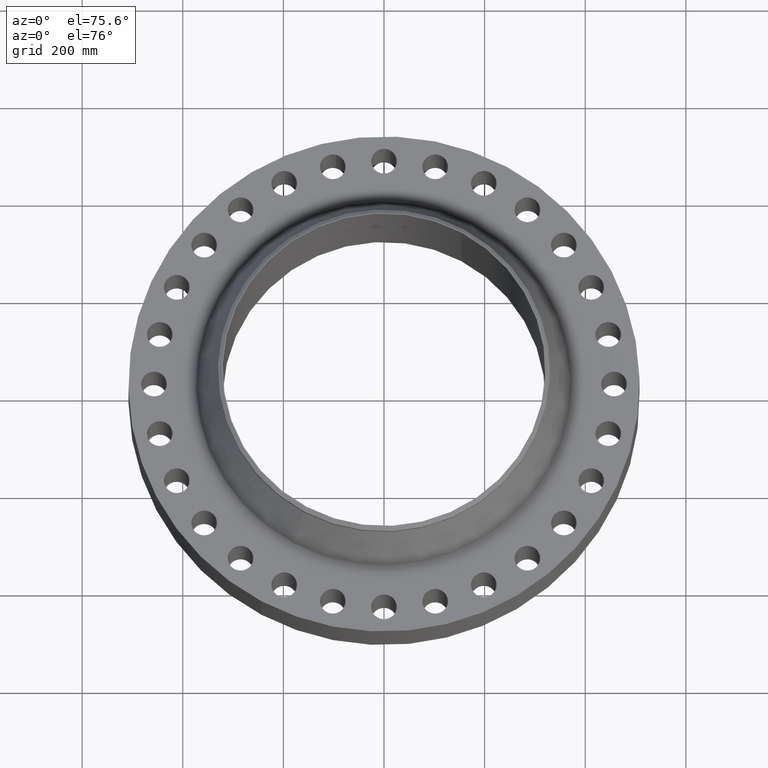
[diagram: clean part render]
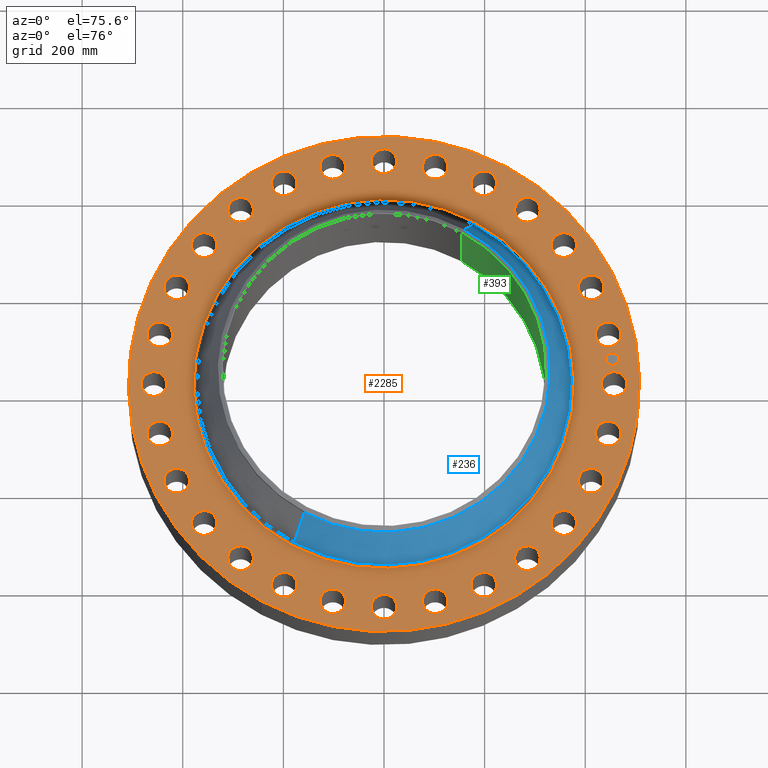
[diagram: same view with three faces highlighted in distinct colors, each labeled with its STEP entity id]
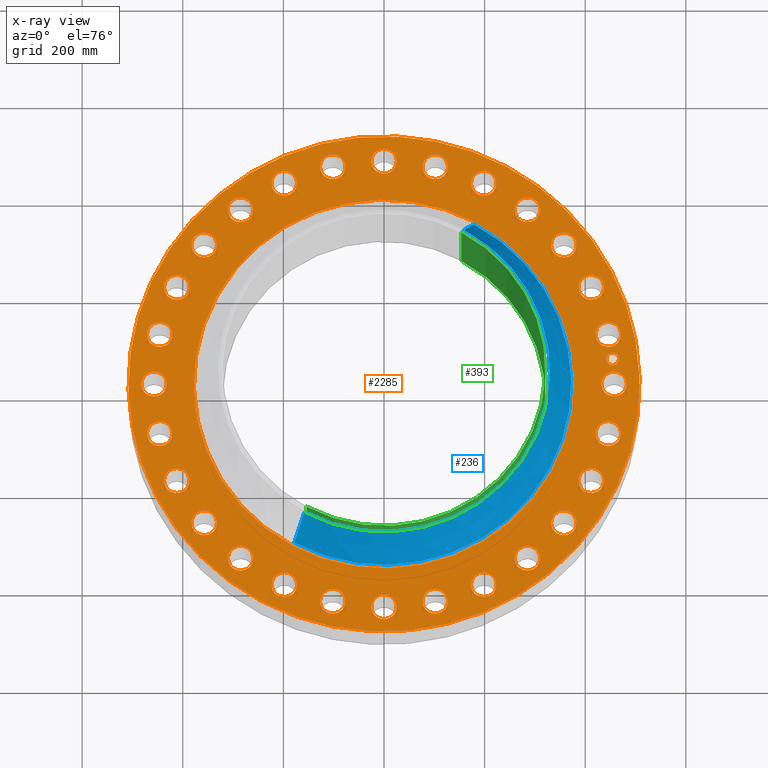
[diagram: x-ray of the same camera — body ghosted, the three highlighted faces saturated]
A machine part, auxiliary view with three faces highlighted in distinct colors.
The next image is the same camera in x-ray (body ghosted, the three faces saturated) — at least one of them is partly hidden behind the body in this view.
Their STEP definitions:

[orange] entity #2285 — the highlighted planar face has unit normal (0, 0, -1).
#65=AXIS2_PLACEMENT_3D('Circle Axis2P3D',#63,#64,$) ;
#82=AXIS2_PLACEMENT_3D('Circle Axis2P3D',#80,#81,$) ;
#115=AXIS2_PLACEMENT_3D('Circle Axis2P3D',#113,#114,$) ;
#139=AXIS2_PLACEMENT_3D('Circle Axis2P3D',#137,#138,$) ;
#156=AXIS2_PLACEMENT_3D('Circle Axis2P3D',#154,#155,$) ;
#191=AXIS2_PLACEMENT_3D('Circle Axis2P3D',#189,#190,$) ;
#1002=AXIS2_PLACEMENT_3D('Circle Axis2P3D',#1000,#1001,$) ;
#1014=AXIS2_PLACEMENT_3D('Circle Axis2P3D',#1012,#1013,$) ;
#1045=AXIS2_PLACEMENT_3D('Circle Axis2P3D',#1043,#1044,$) ;
#1057=AXIS2_PLACEMENT_3D('Circle Axis2P3D',#1055,#1056,$) ;
#1088=AXIS2_PLACEMENT_3D('Circle Axis2P3D',#1086,#1087,$) ;
#1100=AXIS2_PLACEMENT_3D('Circle Axis2P3D',#1098,#1099,$) ;
#1131=AXIS2_PLACEMENT_3D('Circle Axis2P3D',#1129,#1130,$) ;
#1143=AXIS2_PLACEMENT_3D('Circle Axis2P3D',#1141,#1142,$) ;
#1174=AXIS2_PLACEMENT_3D('Circle Axis2P3D',#1172,#1173,$) ;
#1186=AXIS2_PLACEMENT_3D('Circle Axis2P3D',#1184,#1185,$) ;
#1217=AXIS2_PLACEMENT_3D('Circle Axis2P3D',#1215,#1216,$) ;
#1229=AXIS2_PLACEMENT_3D('Circle Axis2P3D',#1227,#1228,$) ;
#1260=AXIS2_PLACEMENT_3D('Circle Axis2P3D',#1258,#1259,$) ;
#1272=AXIS2_PLACEMENT_3D('Circle Axis2P3D',#1270,#1271,$) ;
#1303=AXIS2_PLACEMENT_3D('Circle Axis2P3D',#1301,#1302,$) ;
#1315=AXIS2_PLACEMENT_3D('Circle Axis2P3D',#1313,#1314,$) ;
#1346=AXIS2_PLACEMENT_3D('Circle Axis2P3D',#1344,#1345,$) ;
#1358=AXIS2_PLACEMENT_3D('Circle Axis2P3D',#1356,#1357,$) ;
#1389=AXIS2_PLACEMENT_3D('Circle Axis2P3D',#1387,#1388,$) ;
#1401=AXIS2_PLACEMENT_3D('Circle Axis2P3D',#1399,#1400,$) ;
#1432=AXIS2_PLACEMENT_3D('Circle Axis2P3D',#1430,#1431,$) ;
#1444=AXIS2_PLACEMENT_3D('Circle Axis2P3D',#1442,#1443,$) ;
#1475=AXIS2_PLACEMENT_3D('Circle Axis2P3D',#1473,#1474,$) ;
#1487=AXIS2_PLACEMENT_3D('Circle Axis2P3D',#1485,#1486,$) ;
#1518=AXIS2_PLACEMENT_3D('Circle Axis2P3D',#1516,#1517,$) ;
#1530=AXIS2_PLACEMENT_3D('Circle Axis2P3D',#1528,#1529,$) ;
#1561=AXIS2_PLACEMENT_3D('Circle Axis2P3D',#1559,#1560,$) ;
#1573=AXIS2_PLACEMENT_3D('Circle Axis2P3D',#1571,#1572,$) ;
#1604=AXIS2_PLACEMENT_3D('Circle Axis2P3D',#1602,#1603,$) ;
#1616=AXIS2_PLACEMENT_3D('Circle Axis2P3D',#1614,#1615,$) ;
#1647=AXIS2_PLACEMENT_3D('Circle Axis2P3D',#1645,#1646,$) ;
#1659=AXIS2_PLACEMENT_3D('Circle Axis2P3D',#1657,#1658,$) ;
#1690=AXIS2_PLACEMENT_3D('Circle Axis2P3D',#1688,#1689,$) ;
#1702=AXIS2_PLACEMENT_3D('Circle Axis2P3D',#1700,#1701,$) ;
#1733=AXIS2_PLACEMENT_3D('Circle Axis2P3D',#1731,#1732,$) ;
#1745=AXIS2_PLACEMENT_3D('Circle Axis2P3D',#1743,#1744,$) ;
#1776=AXIS2_PLACEMENT_3D('Circle Axis2P3D',#1774,#1775,$) ;
#1788=AXIS2_PLACEMENT_3D('Circle Axis2P3D',#1786,#1787,$) ;
#1819=AXIS2_PLACEMENT_3D('Circle Axis2P3D',#1817,#1818,$) ;
#1831=AXIS2_PLACEMENT_3D('Circle Axis2P3D',#1829,#1830,$) ;
#1862=AXIS2_PLACEMENT_3D('Circle Axis2P3D',#1860,#1861,$) ;
#1874=AXIS2_PLACEMENT_3D('Circle Axis2P3D',#1872,#1873,$) ;
#1905=AXIS2_PLACEMENT_3D('Circle Axis2P3D',#1903,#1904,$) ;
#1917=AXIS2_PLACEMENT_3D('Circle Axis2P3D',#1915,#1916,$) ;
#1948=AXIS2_PLACEMENT_3D('Circle Axis2P3D',#1946,#1947,$) ;
#1960=AXIS2_PLACEMENT_3D('Circle Axis2P3D',#1958,#1959,$) ;
#1991=AXIS2_PLACEMENT_3D('Circle Axis2P3D',#1989,#1990,$) ;
#2003=AXIS2_PLACEMENT_3D('Circle Axis2P3D',#2001,#2002,$) ;
#2034=AXIS2_PLACEMENT_3D('Circle Axis2P3D',#2032,#2033,$) ;
#2046=AXIS2_PLACEMENT_3D('Circle Axis2P3D',#2044,#2045,$) ;
#2077=AXIS2_PLACEMENT_3D('Circle Axis2P3D',#2075,#2076,$) ;
#2089=AXIS2_PLACEMENT_3D('Circle Axis2P3D',#2087,#2088,$) ;
#2120=AXIS2_PLACEMENT_3D('Circle Axis2P3D',#2118,#2119,$) ;
#2132=AXIS2_PLACEMENT_3D('Circle Axis2P3D',#2130,#2131,$) ;
#2145=AXIS2_PLACEMENT_3D('Plane Axis2P3D',#2142,#2143,#2144) ;
#2269=AXIS2_PLACEMENT_3D('Circle Axis2P3D',#2267,#2268,$) ;
#2278=AXIS2_PLACEMENT_3D('Circle Axis2P3D',#2276,#2277,$) ;
#46=CARTESIAN_POINT('Vertex',(17.1224174382,0.479425538606,4.25000000002)) ;
#60=CARTESIAN_POINT('Vertex',(18.877582562,-0.479425538606,4.25000000002)) ;
#63=CARTESIAN_POINT('Axis2P3D Location',(18.0000000001,0.,4.25000000002)) ;
#80=CARTESIAN_POINT('Axis2P3D Location',(18.0000000001,0.,4.25000000002)) ;
#110=CARTESIAN_POINT('Vertex',(-9.58851077212,-17.5516512379,4.25000000002)) ;
#113=CARTESIAN_POINT('Axis2P3D Location',(0.,0.,4.25000000002)) ;
#117=CARTESIAN_POINT('Vertex',(9.58851077212,17.5516512379,4.25000000002)) ;
#137=CARTESIAN_POINT('Axis2P3D Location',(0.,0.,4.25000000002)) ;
#154=CARTESIAN_POINT('Axis2P3D Location',(0.,0.,4.25000000002)) ;
#158=CARTESIAN_POINT('Vertex',(7.13625927444,13.0628349808,4.25000000002)) ;
#160=CARTESIAN_POINT('Vertex',(-7.13625927444,-13.0628349808,4.25000000002)) ;
#189=CARTESIAN_POINT('Axis2P3D Location',(0.,0.,4.25000000002)) ;
#990=CARTESIAN_POINT('Vertex',(-16.7998049031,3.34269098053,4.25000000002)) ;
#997=CARTESIAN_POINT('Vertex',(-18.2975999356,4.66806264193,4.25000000002)) ;
#1000=CARTESIAN_POINT('Axis2P3D Location',(-17.5487024193,4.00537681123,4.25000000002)) ;
#1012=CARTESIAN_POINT('Axis2P3D Location',(-17.5487024193,4.00537681123,4.25000000002)) ;
#1033=CARTESIAN_POINT('Vertex',(15.6347800003,-6.99719101605,4.25000000002)) ;
#1040=CARTESIAN_POINT('Vertex',(16.8000992443,-8.62262359225,4.25000000002)) ;
#1043=CARTESIAN_POINT('Axis2P3D Location',(16.2174396223,-7.80990730415,4.25000000002)) ;
#1055=CARTESIAN_POINT('Axis2P3D Location',(16.2174396223,-7.80990730415,4.25000000002)) ;
#1076=CARTESIAN_POINT('Vertex',(-15.6347800003,6.99719101605,4.25000000002)) ;
#1083=CARTESIAN_POINT('Vertex',(-16.8000992443,8.62262359225,4.25000000002)) ;
#1086=CARTESIAN_POINT('Axis2P3D Location',(-16.2174396223,7.80990730415,4.25000000002)) ;
#1098=CARTESIAN_POINT('Axis2P3D Location',(-16.2174396223,7.80990730415,4.25000000002)) ;
#1119=CARTESIAN_POINT('Vertex',(13.6857619432,-10.3008226763,4.25000000002)) ;
#1126=CARTESIAN_POINT('Vertex',(14.4601714258,-12.1448101907,4.25000000002)) ;
#1129=CARTESIAN_POINT('Axis2P3D Location',(14.0729666845,-11.2228164335,4.25000000002)) ;
#1141=CARTESIAN_POINT('Axis2P3D Location',(14.0729666845,-11.2228164335,4.25000000002)) ;
#1162=CARTESIAN_POINT('Vertex',(-13.6857619432,10.3008226763,4.25000000002)) ;
#1169=CARTESIAN_POINT('Vertex',(-14.4601714258,12.1448101907,4.25000000002)) ;
#1172=CARTESIAN_POINT('Axis2P3D Location',(-14.0729666845,11.2228164335,4.25000000002)) ;
#1184=CARTESIAN_POINT('Axis2P3D Location',(-14.0729666845,11.2228164335,4.25000000002)) ;
#1205=CARTESIAN_POINT('Vertex',(11.0504826355,-13.0879280751,4.25000000002)) ;
#1212=CARTESIAN_POINT('Vertex',(11.3951502316,-15.0580052939,4.25000000002)) ;
#1215=CARTESIAN_POINT('Axis2P3D Location',(11.2228164335,-14.0729666845,4.25000000002)) ;
#1227=CARTESIAN_POINT('Axis2P3D Location',(11.2228164335,-14.0729666845,4.25000000002)) ;
#1248=CARTESIAN_POINT('Vertex',(-11.0504826355,13.0879280751,4.25000000002)) ;
#1255=CARTESIAN_POINT('Vertex',(-11.3951502316,15.0580052939,4.25000000002)) ;
#1258=CARTESIAN_POINT('Axis2P3D Location',(-11.2228164335,14.0729666845,4.25000000002)) ;
#1270=CARTESIAN_POINT('Axis2P3D Location',(-11.2228164335,14.0729666845,4.25000000002)) ;
#1291=CARTESIAN_POINT('Vertex',(7.86108598557,-15.2187501097,4.25000000002)) ;
#1298=CARTESIAN_POINT('Vertex',(7.75872862272,-17.2161291349,4.25000000002)) ;
#1301=CARTESIAN_POINT('Axis2P3D Location',(7.80990730415,-16.2174396223,4.25000000002)) ;
#1313=CARTESIAN_POINT('Axis2P3D Location',(7.80990730415,-16.2174396223,4.25000000002)) ;
#1334=CARTESIAN_POINT('Vertex',(-7.86108598557,15.2187501097,4.25000000002)) ;
#1341=CARTESIAN_POINT('Vertex',(-7.75872862272,17.2161291349,4.25000000002)) ;
#1344=CARTESIAN_POINT('Axis2P3D Location',(-7.80990730415,16.2174396223,4.25000000002)) ;
#1356=CARTESIAN_POINT('Axis2P3D Location',(-7.80990730415,16.2174396223,4.25000000002)) ;
#1377=CARTESIAN_POINT('Vertex',(4.27750165933,-16.5864404659,4.25000000002)) ;
#1384=CARTESIAN_POINT('Vertex',(3.73325196313,-18.5109643728,4.25000000002)) ;
#1387=CARTESIAN_POINT('Axis2P3D Location',(4.00537681123,-17.5487024193,4.25000000002)) ;
#1399=CARTESIAN_POINT('Axis2P3D Location',(4.00537681123,-17.5487024193,4.25000000002)) ;
#1420=CARTESIAN_POINT('Vertex',(-4.27750165933,16.5864404659,4.25000000002)) ;
#1427=CARTESIAN_POINT('Vertex',(-3.73325196313,18.5109643728,4.25000000002)) ;
#1430=CARTESIAN_POINT('Axis2P3D Location',(-4.00537681123,17.5487024193,4.25000000002)) ;
#1442=CARTESIAN_POINT('Axis2P3D Location',(-4.00537681123,17.5487024193,4.25000000002)) ;
#1463=CARTESIAN_POINT('Vertex',(0.479425538606,-17.1224174382,4.25000000002)) ;
#1470=CARTESIAN_POINT('Vertex',(-0.479425538606,-18.877582562,4.25000000002)) ;
#1473=CARTESIAN_POINT('Axis2P3D Location',(2.86105513149E-015,-18.0000000001,4.25000000002)) ;
#1485=CARTESIAN_POINT('Axis2P3D Location',(2.86105513149E-015,-18.0000000001,4.25000000002)) ;
#1506=CARTESIAN_POINT('Vertex',(-0.479425538606,17.1224174382,4.25000000002)) ;
#1513=CARTESIAN_POINT('Vertex',(0.479425538606,18.877582562,4.25000000002)) ;
#1516=CARTESIAN_POINT('Axis2P3D Location',(-1.0686164813E-015,18.0000000001,4.25000000002)) ;
#1528=CARTESIAN_POINT('Axis2P3D Location',(-1.0686164813E-015,18.0000000001,4.25000000002)) ;
#1549=CARTESIAN_POINT('Vertex',(-3.34269098053,-16.7998049031,4.25000000002)) ;
#1556=CARTESIAN_POINT('Vertex',(-4.66806264193,-18.2975999356,4.25000000002)) ;
#1559=CARTESIAN_POINT('Axis2P3D Location',(-4.00537681123,-17.5487024193,4.25000000002)) ;
#1571=CARTESIAN_POINT('Axis2P3D Location',(-4.00537681123,-17.5487024193,4.25000000002)) ;
#1592=CARTESIAN_POINT('Vertex',(3.34269098053,16.7998049031,4.25000000002)) ;
#1599=CARTESIAN_POINT('Vertex',(4.66806264193,18.2975999356,4.25000000002)) ;
#1602=CARTESIAN_POINT('Axis2P3D Location',(4.00537681123,17.5487024193,4.25000000002)) ;
#1614=CARTESIAN_POINT('Axis2P3D Location',(4.00537681123,17.5487024193,4.25000000002)) ;
#1635=CARTESIAN_POINT('Vertex',(-6.99719101605,-15.6347800003,4.25000000002)) ;
#1642=CARTESIAN_POINT('Vertex',(-8.62262359225,-16.8000992443,4.25000000002)) ;
#1645=CARTESIAN_POINT('Axis2P3D Location',(-7.80990730415,-16.2174396223,4.25000000002)) ;
#1657=CARTESIAN_POINT('Axis2P3D Location',(-7.80990730415,-16.2174396223,4.25000000002)) ;
#1678=CARTESIAN_POINT('Vertex',(6.99719101605,15.6347800003,4.25000000002)) ;
#1685=CARTESIAN_POINT('Vertex',(8.62262359225,16.8000992443,4.25000000002)) ;
#1688=CARTESIAN_POINT('Axis2P3D Location',(7.80990730415,16.2174396223,4.25000000002)) ;
#1700=CARTESIAN_POINT('Axis2P3D Location',(7.80990730415,16.2174396223,4.25000000002)) ;
#1721=CARTESIAN_POINT('Vertex',(-10.3008226763,-13.6857619432,4.25000000002)) ;
#1728=CARTESIAN_POINT('Vertex',(-12.1448101907,-14.4601714258,4.25000000002)) ;
#1731=CARTESIAN_POINT('Axis2P3D Location',(-11.2228164335,-14.0729666845,4.25000000002)) ;
#1743=CARTESIAN_POINT('Axis2P3D Location',(-11.2228164335,-14.0729666845,4.25000000002)) ;
#1764=CARTESIAN_POINT('Vertex',(10.3008226763,13.6857619432,4.25000000002)) ;
#1771=CARTESIAN_POINT('Vertex',(12.1448101907,14.4601714258,4.25000000002)) ;
#1774=CARTESIAN_POINT('Axis2P3D Location',(11.2228164335,14.0729666845,4.25000000002)) ;
#1786=CARTESIAN_POINT('Axis2P3D Location',(11.2228164335,14.0729666845,4.25000000002)) ;
#1807=CARTESIAN_POINT('Vertex',(-13.0879280751,-11.0504826355,4.25000000002)) ;
#1814=CARTESIAN_POINT('Vertex',(-15.0580052939,-11.3951502316,4.25000000002)) ;
#1817=CARTESIAN_POINT('Axis2P3D Location',(-14.0729666845,-11.2228164335,4.25000000002)) ;
#1829=CARTESIAN_POINT('Axis2P3D Location',(-14.0729666845,-11.2228164335,4.25000000002)) ;
#1850=CARTESIAN_POINT('Vertex',(13.0879280751,11.0504826355,4.25000000002)) ;
#1857=CARTESIAN_POINT('Vertex',(15.0580052939,11.3951502316,4.25000000002)) ;
#1860=CARTESIAN_POINT('Axis2P3D Location',(14.0729666845,11.2228164335,4.25000000002)) ;
#1872=CARTESIAN_POINT('Axis2P3D Location',(14.0729666845,11.2228164335,4.25000000002)) ;
#1893=CARTESIAN_POINT('Vertex',(-15.2187501097,-7.86108598557,4.25000000002)) ;
#1900=CARTESIAN_POINT('Vertex',(-17.2161291349,-7.75872862272,4.25000000002)) ;
#1903=CARTESIAN_POINT('Axis2P3D Location',(-16.2174396223,-7.80990730415,4.25000000002)) ;
#1915=CARTESIAN_POINT('Axis2P3D Location',(-16.2174396223,-7.80990730415,4.25000000002)) ;
#1936=CARTESIAN_POINT('Vertex',(15.2187501097,7.86108598557,4.25000000002)) ;
#1943=CARTESIAN_POINT('Vertex',(17.2161291349,7.75872862272,4.25000000002)) ;
#1946=CARTESIAN_POINT('Axis2P3D Location',(16.2174396223,7.80990730415,4.25000000002)) ;
#1958=CARTESIAN_POINT('Axis2P3D Location',(16.2174396223,7.80990730415,4.25000000002)) ;
#1979=CARTESIAN_POINT('Vertex',(-16.5864404659,-4.27750165933,4.25000000002)) ;
#1986=CARTESIAN_POINT('Vertex',(-18.5109643728,-3.73325196313,4.25000000002)) ;
#1989=CARTESIAN_POINT('Axis2P3D Location',(-17.5487024193,-4.00537681123,4.25000000002)) ;
#2001=CARTESIAN_POINT('Axis2P3D Location',(-17.5487024193,-4.00537681123,4.25000000002)) ;
#2022=CARTESIAN_POINT('Vertex',(16.5864404659,4.27750165933,4.25000000002)) ;
#2029=CARTESIAN_POINT('Vertex',(18.5109643728,3.73325196313,4.25000000002)) ;
#2032=CARTESIAN_POINT('Axis2P3D Location',(17.5487024193,4.00537681123,4.25000000002)) ;
#2044=CARTESIAN_POINT('Axis2P3D Location',(17.5487024193,4.00537681123,4.25000000002)) ;
#2065=CARTESIAN_POINT('Vertex',(-17.1224174382,-0.479425538606,4.25000000002)) ;
#2072=CARTESIAN_POINT('Vertex',(-18.877582562,0.479425538606,4.25000000002)) ;
#2075=CARTESIAN_POINT('Axis2P3D Location',(-18.0000000001,-1.01979700158E-014,4.25000000002)) ;
#2087=CARTESIAN_POINT('Axis2P3D Location',(-18.0000000001,-1.01979700158E-014,4.25000000002)) ;
#2108=CARTESIAN_POINT('Vertex',(16.7998049031,-3.34269098053,4.25000000002)) ;
#2115=CARTESIAN_POINT('Vertex',(18.2975999356,-4.66806264193,4.25000000002)) ;
#2118=CARTESIAN_POINT('Axis2P3D Location',(17.5487024193,-4.00537681123,4.25000000002)) ;
#2130=CARTESIAN_POINT('Axis2P3D Location',(17.5487024193,-4.00537681123,4.25000000002)) ;
#2142=CARTESIAN_POINT('Axis2P3D Location',(0.,20.0000000001,4.25000000002)) ;
#2267=CARTESIAN_POINT('Axis2P3D Location',(17.8868197781,2.01536056987,4.25000000002)) ;
#2271=CARTESIAN_POINT('Vertex',(17.8308376684,2.51221553602,4.25000000002)) ;
#2273=CARTESIAN_POINT('Vertex',(17.9428018879,1.51850560372,4.25000000002)) ;
#2276=CARTESIAN_POINT('Axis2P3D Location',(17.8868197781,2.01536056987,4.25000000002)) ;
#64=DIRECTION('Axis2P3D Direction',(0.,-0.,-0.0393700787402)) ;
#81=DIRECTION('Axis2P3D Direction',(0.,-0.,-0.0393700787402)) ;
#114=DIRECTION('Axis2P3D Direction',(0.,0.,-0.0393700787402)) ;
#138=DIRECTION('Axis2P3D Direction',(0.,0.,-0.0393700787402)) ;
#155=DIRECTION('Axis2P3D Direction',(0.,0.,-0.0393700787402)) ;
#190=DIRECTION('Axis2P3D Direction',(0.,0.,-0.0393700787402)) ;
#1001=DIRECTION('Axis2P3D Direction',(0.,0.,-0.0393700787402)) ;
#1013=DIRECTION('Axis2P3D Direction',(0.,0.,-0.0393700787402)) ;
#1044=DIRECTION('Axis2P3D Direction',(0.,-0.,-0.0393700787402)) ;
#1056=DIRECTION('Axis2P3D Direction',(0.,-0.,-0.0393700787402)) ;
#1087=DIRECTION('Axis2P3D Direction',(0.,0.,-0.0393700787402)) ;
#1099=DIRECTION('Axis2P3D Direction',(0.,0.,-0.0393700787402)) ;
#1130=DIRECTION('Axis2P3D Direction',(0.,-0.,-0.0393700787402)) ;
#1142=DIRECTION('Axis2P3D Direction',(0.,-0.,-0.0393700787402)) ;
#1173=DIRECTION('Axis2P3D Direction',(0.,0.,-0.0393700787402)) ;
#1185=DIRECTION('Axis2P3D Direction',(0.,0.,-0.0393700787402)) ;
#1216=DIRECTION('Axis2P3D Direction',(0.,-0.,-0.0393700787402)) ;
#1228=DIRECTION('Axis2P3D Direction',(0.,-0.,-0.0393700787402)) ;
#1259=DIRECTION('Axis2P3D Direction',(0.,0.,-0.0393700787402)) ;
#1271=DIRECTION('Axis2P3D Direction',(0.,0.,-0.0393700787402)) ;
#1302=DIRECTION('Axis2P3D Direction',(0.,-0.,-0.0393700787402)) ;
#1314=DIRECTION('Axis2P3D Direction',(0.,-0.,-0.0393700787402)) ;
#1345=DIRECTION('Axis2P3D Direction',(0.,0.,-0.0393700787402)) ;
#1357=DIRECTION('Axis2P3D Direction',(0.,0.,-0.0393700787402)) ;
#1388=DIRECTION('Axis2P3D Direction',(0.,-0.,-0.0393700787402)) ;
#1400=DIRECTION('Axis2P3D Direction',(0.,-0.,-0.0393700787402)) ;
#1431=DIRECTION('Axis2P3D Direction',(0.,0.,-0.0393700787402)) ;
#1443=DIRECTION('Axis2P3D Direction',(0.,0.,-0.0393700787402)) ;
#1474=DIRECTION('Axis2P3D Direction',(0.,-0.,-0.0393700787402)) ;
#1486=DIRECTION('Axis2P3D Direction',(0.,-0.,-0.0393700787402)) ;
#1517=DIRECTION('Axis2P3D Direction',(0.,0.,-0.0393700787402)) ;
#1529=DIRECTION('Axis2P3D Direction',(0.,0.,-0.0393700787402)) ;
#1560=DIRECTION('Axis2P3D Direction',(-0.,0.,-0.0393700787402)) ;
#1572=DIRECTION('Axis2P3D Direction',(-0.,0.,-0.0393700787402)) ;
#1603=DIRECTION('Axis2P3D Direction',(0.,0.,-0.0393700787402)) ;
#1615=DIRECTION('Axis2P3D Direction',(0.,0.,-0.0393700787402)) ;
#1646=DIRECTION('Axis2P3D Direction',(-0.,0.,-0.0393700787402)) ;
#1658=DIRECTION('Axis2P3D Direction',(-0.,0.,-0.0393700787402)) ;
#1689=DIRECTION('Axis2P3D Direction',(0.,0.,-0.0393700787402)) ;
#1701=DIRECTION('Axis2P3D Direction',(0.,0.,-0.0393700787402)) ;
#1732=DIRECTION('Axis2P3D Direction',(-0.,0.,-0.0393700787402)) ;
#1744=DIRECTION('Axis2P3D Direction',(-0.,0.,-0.0393700787402)) ;
#1775=DIRECTION('Axis2P3D Direction',(0.,0.,-0.0393700787402)) ;
#1787=DIRECTION('Axis2P3D Direction',(0.,0.,-0.0393700787402)) ;
#1818=DIRECTION('Axis2P3D Direction',(-0.,0.,-0.0393700787402)) ;
#1830=DIRECTION('Axis2P3D Direction',(-0.,0.,-0.0393700787402)) ;
#1861=DIRECTION('Axis2P3D Direction',(0.,0.,-0.0393700787402)) ;
#1873=DIRECTION('Axis2P3D Direction',(0.,0.,-0.0393700787402)) ;
#1904=DIRECTION('Axis2P3D Direction',(-0.,0.,-0.0393700787402)) ;
#1916=DIRECTION('Axis2P3D Direction',(-0.,0.,-0.0393700787402)) ;
#1947=DIRECTION('Axis2P3D Direction',(0.,0.,-0.0393700787402)) ;
#1959=DIRECTION('Axis2P3D Direction',(0.,0.,-0.0393700787402)) ;
#1990=DIRECTION('Axis2P3D Direction',(-0.,0.,-0.0393700787402)) ;
#2002=DIRECTION('Axis2P3D Direction',(-0.,0.,-0.0393700787402)) ;
#2033=DIRECTION('Axis2P3D Direction',(0.,0.,-0.0393700787402)) ;
#2045=DIRECTION('Axis2P3D Direction',(0.,0.,-0.0393700787402)) ;
#2076=DIRECTION('Axis2P3D Direction',(-0.,0.,-0.0393700787402)) ;
#2088=DIRECTION('Axis2P3D Direction',(-0.,0.,-0.0393700787402)) ;
#2119=DIRECTION('Axis2P3D Direction',(0.,-0.,-0.0393700787402)) ;
#2131=DIRECTION('Axis2P3D Direction',(0.,-0.,-0.0393700787402)) ;
#2143=DIRECTION('Axis2P3D Direction',(0.,0.,-0.0393700787402)) ;
#2144=DIRECTION('Axis2P3D XDirection',(0.0393700787402,0.,0.)) ;
#2268=DIRECTION('Axis2P3D Direction',(0.,0.,-0.0393700787402)) ;
#2277=DIRECTION('Axis2P3D Direction',(0.,0.,-0.0393700787402)) ;
#2148=ORIENTED_EDGE('',*,*,#141,.F.) ;
#2149=ORIENTED_EDGE('',*,*,#119,.F.) ;
#2152=ORIENTED_EDGE('',*,*,#67,.T.) ;
#2153=ORIENTED_EDGE('',*,*,#84,.T.) ;
#2156=ORIENTED_EDGE('',*,*,#193,.T.) ;
#2157=ORIENTED_EDGE('',*,*,#162,.T.) ;
#2160=ORIENTED_EDGE('',*,*,#2134,.T.) ;
#2161=ORIENTED_EDGE('',*,*,#2122,.T.) ;
#2164=ORIENTED_EDGE('',*,*,#1059,.T.) ;
#2165=ORIENTED_EDGE('',*,*,#1047,.T.) ;
#2168=ORIENTED_EDGE('',*,*,#1145,.T.) ;
#2169=ORIENTED_EDGE('',*,*,#1133,.T.) ;
#2172=ORIENTED_EDGE('',*,*,#1231,.T.) ;
#2173=ORIENTED_EDGE('',*,*,#1219,.T.) ;
#2176=ORIENTED_EDGE('',*,*,#1317,.T.) ;
#2177=ORIENTED_EDGE('',*,*,#1305,.T.) ;
#2180=ORIENTED_EDGE('',*,*,#1403,.T.) ;
#2181=ORIENTED_EDGE('',*,*,#1391,.T.) ;
#2184=ORIENTED_EDGE('',*,*,#1489,.T.) ;
#2185=ORIENTED_EDGE('',*,*,#1477,.T.) ;
#2188=ORIENTED_EDGE('',*,*,#1575,.T.) ;
#2189=ORIENTED_EDGE('',*,*,#1563,.T.) ;
#2192=ORIENTED_EDGE('',*,*,#1661,.T.) ;
#2193=ORIENTED_EDGE('',*,*,#1649,.T.) ;
#2196=ORIENTED_EDGE('',*,*,#1747,.T.) ;
#2197=ORIENTED_EDGE('',*,*,#1735,.T.) ;
#2200=ORIENTED_EDGE('',*,*,#1833,.T.) ;
#2201=ORIENTED_EDGE('',*,*,#1821,.T.) ;
#2204=ORIENTED_EDGE('',*,*,#1919,.T.) ;
#2205=ORIENTED_EDGE('',*,*,#1907,.T.) ;
#2208=ORIENTED_EDGE('',*,*,#2005,.T.) ;
#2209=ORIENTED_EDGE('',*,*,#1993,.T.) ;
#2212=ORIENTED_EDGE('',*,*,#2091,.T.) ;
#2213=ORIENTED_EDGE('',*,*,#2079,.T.) ;
#2216=ORIENTED_EDGE('',*,*,#1016,.T.) ;
#2217=ORIENTED_EDGE('',*,*,#1004,.T.) ;
#2220=ORIENTED_EDGE('',*,*,#1102,.T.) ;
#2221=ORIENTED_EDGE('',*,*,#1090,.T.) ;
#2224=ORIENTED_EDGE('',*,*,#1188,.T.) ;
#2225=ORIENTED_EDGE('',*,*,#1176,.T.) ;
#2228=ORIENTED_EDGE('',*,*,#1274,.T.) ;
#2229=ORIENTED_EDGE('',*,*,#1262,.T.) ;
#2232=ORIENTED_EDGE('',*,*,#1360,.T.) ;
#2233=ORIENTED_EDGE('',*,*,#1348,.T.) ;
#2236=ORIENTED_EDGE('',*,*,#1446,.T.) ;
#2237=ORIENTED_EDGE('',*,*,#1434,.T.) ;
#2240=ORIENTED_EDGE('',*,*,#1532,.T.) ;
#2241=ORIENTED_EDGE('',*,*,#1520,.T.) ;
#2244=ORIENTED_EDGE('',*,*,#1618,.T.) ;
#2245=ORIENTED_EDGE('',*,*,#1606,.T.) ;
#2248=ORIENTED_EDGE('',*,*,#1704,.T.) ;
#2249=ORIENTED_EDGE('',*,*,#1692,.T.) ;
#2252=ORIENTED_EDGE('',*,*,#1790,.T.) ;
#2253=ORIENTED_EDGE('',*,*,#1778,.T.) ;
#2256=ORIENTED_EDGE('',*,*,#1876,.T.) ;
#2257=ORIENTED_EDGE('',*,*,#1864,.T.) ;
#2260=ORIENTED_EDGE('',*,*,#1962,.T.) ;
#2261=ORIENTED_EDGE('',*,*,#1950,.T.) ;
#2264=ORIENTED_EDGE('',*,*,#2048,.T.) ;
#2265=ORIENTED_EDGE('',*,*,#2036,.T.) ;
#2282=ORIENTED_EDGE('',*,*,#2275,.T.) ;
#2283=ORIENTED_EDGE('',*,*,#2280,.T.) ;
#2154=FACE_BOUND('',#2151,.T.) ;
#2158=FACE_BOUND('',#2155,.T.) ;
#2162=FACE_BOUND('',#2159,.T.) ;
#2166=FACE_BOUND('',#2163,.T.) ;
#2170=FACE_BOUND('',#2167,.T.) ;
#2174=FACE_BOUND('',#2171,.T.) ;
#2178=FACE_BOUND('',#2175,.T.) ;
#2182=FACE_BOUND('',#2179,.T.) ;
#2186=FACE_BOUND('',#2183,.T.) ;
#2190=FACE_BOUND('',#2187,.T.) ;
#2194=FACE_BOUND('',#2191,.T.) ;
#2198=FACE_BOUND('',#2195,.T.) ;
#2202=FACE_BOUND('',#2199,.T.) ;
#2206=FACE_BOUND('',#2203,.T.) ;
#2210=FACE_BOUND('',#2207,.T.) ;
#2214=FACE_BOUND('',#2211,.T.) ;
#2218=FACE_BOUND('',#2215,.T.) ;
#2222=FACE_BOUND('',#2219,.T.) ;
#2226=FACE_BOUND('',#2223,.T.) ;
#2230=FACE_BOUND('',#2227,.T.) ;
#2234=FACE_BOUND('',#2231,.T.) ;
#2238=FACE_BOUND('',#2235,.T.) ;
#2242=FACE_BOUND('',#2239,.T.) ;
#2246=FACE_BOUND('',#2243,.T.) ;
#2250=FACE_BOUND('',#2247,.T.) ;
#2254=FACE_BOUND('',#2251,.T.) ;
#2258=FACE_BOUND('',#2255,.T.) ;
#2262=FACE_BOUND('',#2259,.T.) ;
#2266=FACE_BOUND('',#2263,.T.) ;
#2284=FACE_BOUND('',#2281,.T.) ;
#2285=ADVANCED_FACE('PartBody',(#2150,#2154,#2158,#2162,#2166,#2170,#2174,#2178,#2182,#2186,#2190,#2194,#2198,#2202,#2206,#2210,#2214,#2218,#2222,#2226,#2230,#2234,#2238,#2242,#2246,#2250,#2254,#2258,#2262,#2266,#2284),#2146,.F.) ;
#66=CIRCLE('generated circle',#65,1.) ;
#83=CIRCLE('generated circle',#82,1.) ;
#116=CIRCLE('generated circle',#115,20.0000000001) ;
#140=CIRCLE('generated circle',#139,20.0000000001) ;
#157=CIRCLE('generated circle',#156,14.8850211343) ;
#192=CIRCLE('generated circle',#191,14.8850211343) ;
#1003=CIRCLE('generated circle',#1002,1.) ;
#1015=CIRCLE('generated circle',#1014,1.) ;
#1046=CIRCLE('generated circle',#1045,1.) ;
#1058=CIRCLE('generated circle',#1057,1.) ;
#1089=CIRCLE('generated circle',#1088,1.) ;
#1101=CIRCLE('generated circle',#1100,1.) ;
#1132=CIRCLE('generated circle',#1131,1.) ;
#1144=CIRCLE('generated circle',#1143,1.) ;
#1175=CIRCLE('generated circle',#1174,1.) ;
#1187=CIRCLE('generated circle',#1186,1.) ;
#1218=CIRCLE('generated circle',#1217,1.) ;
#1230=CIRCLE('generated circle',#1229,1.) ;
#1261=CIRCLE('generated circle',#1260,1.) ;
#1273=CIRCLE('generated circle',#1272,1.) ;
#1304=CIRCLE('generated circle',#1303,1.) ;
#1316=CIRCLE('generated circle',#1315,1.) ;
#1347=CIRCLE('generated circle',#1346,1.) ;
#1359=CIRCLE('generated circle',#1358,1.) ;
#1390=CIRCLE('generated circle',#1389,1.) ;
#1402=CIRCLE('generated circle',#1401,1.) ;
#1433=CIRCLE('generated circle',#1432,1.) ;
#1445=CIRCLE('generated circle',#1444,1.) ;
#1476=CIRCLE('generated circle',#1475,1.) ;
#1488=CIRCLE('generated circle',#1487,1.) ;
#1519=CIRCLE('generated circle',#1518,1.) ;
#1531=CIRCLE('generated circle',#1530,1.) ;
#1562=CIRCLE('generated circle',#1561,1.) ;
#1574=CIRCLE('generated circle',#1573,1.) ;
#1605=CIRCLE('generated circle',#1604,1.) ;
#1617=CIRCLE('generated circle',#1616,1.) ;
#1648=CIRCLE('generated circle',#1647,1.) ;
#1660=CIRCLE('generated circle',#1659,1.) ;
#1691=CIRCLE('generated circle',#1690,1.) ;
#1703=CIRCLE('generated circle',#1702,1.) ;
#1734=CIRCLE('generated circle',#1733,1.) ;
#1746=CIRCLE('generated circle',#1745,1.) ;
#1777=CIRCLE('generated circle',#1776,1.) ;
#1789=CIRCLE('generated circle',#1788,1.) ;
#1820=CIRCLE('generated circle',#1819,1.) ;
#1832=CIRCLE('generated circle',#1831,1.) ;
#1863=CIRCLE('generated circle',#1862,1.) ;
#1875=CIRCLE('generated circle',#1874,1.) ;
#1906=CIRCLE('generated circle',#1905,1.) ;
#1918=CIRCLE('generated circle',#1917,1.) ;
#1949=CIRCLE('generated circle',#1948,1.) ;
#1961=CIRCLE('generated circle',#1960,1.) ;
#1992=CIRCLE('generated circle',#1991,1.) ;
#2004=CIRCLE('generated circle',#2003,1.) ;
#2035=CIRCLE('generated circle',#2034,1.) ;
#2047=CIRCLE('generated circle',#2046,1.) ;
#2078=CIRCLE('generated circle',#2077,1.) ;
#2090=CIRCLE('generated circle',#2089,1.) ;
#2121=CIRCLE('generated circle',#2120,1.) ;
#2133=CIRCLE('generated circle',#2132,1.) ;
#2270=CIRCLE('generated circle',#2269,0.499998853999) ;
#2279=CIRCLE('generated circle',#2278,0.499998853999) ;
#67=EDGE_CURVE('',#47,#61,#66,.T.) ;
#84=EDGE_CURVE('',#61,#47,#83,.T.) ;
#119=EDGE_CURVE('',#111,#118,#116,.T.) ;
#141=EDGE_CURVE('',#118,#111,#140,.T.) ;
#162=EDGE_CURVE('',#159,#161,#157,.T.) ;
#193=EDGE_CURVE('',#161,#159,#192,.T.) ;
#1004=EDGE_CURVE('',#991,#998,#1003,.T.) ;
#1016=EDGE_CURVE('',#998,#991,#1015,.T.) ;
#1047=EDGE_CURVE('',#1034,#1041,#1046,.T.) ;
#1059=EDGE_CURVE('',#1041,#1034,#1058,.T.) ;
#1090=EDGE_CURVE('',#1077,#1084,#1089,.T.) ;
#1102=EDGE_CURVE('',#1084,#1077,#1101,.T.) ;
#1133=EDGE_CURVE('',#1120,#1127,#1132,.T.) ;
#1145=EDGE_CURVE('',#1127,#1120,#1144,.T.) ;
#1176=EDGE_CURVE('',#1163,#1170,#1175,.T.) ;
#1188=EDGE_CURVE('',#1170,#1163,#1187,.T.) ;
#1219=EDGE_CURVE('',#1206,#1213,#1218,.T.) ;
#1231=EDGE_CURVE('',#1213,#1206,#1230,.T.) ;
#1262=EDGE_CURVE('',#1249,#1256,#1261,.T.) ;
#1274=EDGE_CURVE('',#1256,#1249,#1273,.T.) ;
#1305=EDGE_CURVE('',#1292,#1299,#1304,.T.) ;
#1317=EDGE_CURVE('',#1299,#1292,#1316,.T.) ;
#1348=EDGE_CURVE('',#1335,#1342,#1347,.T.) ;
#1360=EDGE_CURVE('',#1342,#1335,#1359,.T.) ;
#1391=EDGE_CURVE('',#1378,#1385,#1390,.T.) ;
#1403=EDGE_CURVE('',#1385,#1378,#1402,.T.) ;
#1434=EDGE_CURVE('',#1421,#1428,#1433,.T.) ;
#1446=EDGE_CURVE('',#1428,#1421,#1445,.T.) ;
#1477=EDGE_CURVE('',#1464,#1471,#1476,.T.) ;
#1489=EDGE_CURVE('',#1471,#1464,#1488,.T.) ;
#1520=EDGE_CURVE('',#1507,#1514,#1519,.T.) ;
#1532=EDGE_CURVE('',#1514,#1507,#1531,.T.) ;
#1563=EDGE_CURVE('',#1550,#1557,#1562,.T.) ;
#1575=EDGE_CURVE('',#1557,#1550,#1574,.T.) ;
#1606=EDGE_CURVE('',#1593,#1600,#1605,.T.) ;
#1618=EDGE_CURVE('',#1600,#1593,#1617,.T.) ;
#1649=EDGE_CURVE('',#1636,#1643,#1648,.T.) ;
#1661=EDGE_CURVE('',#1643,#1636,#1660,.T.) ;
#1692=EDGE_CURVE('',#1679,#1686,#1691,.T.) ;
#1704=EDGE_CURVE('',#1686,#1679,#1703,.T.) ;
#1735=EDGE_CURVE('',#1722,#1729,#1734,.T.) ;
#1747=EDGE_CURVE('',#1729,#1722,#1746,.T.) ;
#1778=EDGE_CURVE('',#1765,#1772,#1777,.T.) ;
#1790=EDGE_CURVE('',#1772,#1765,#1789,.T.) ;
#1821=EDGE_CURVE('',#1808,#1815,#1820,.T.) ;
#1833=EDGE_CURVE('',#1815,#1808,#1832,.T.) ;
#1864=EDGE_CURVE('',#1851,#1858,#1863,.T.) ;
#1876=EDGE_CURVE('',#1858,#1851,#1875,.T.) ;
#1907=EDGE_CURVE('',#1894,#1901,#1906,.T.) ;
#1919=EDGE_CURVE('',#1901,#1894,#1918,.T.) ;
#1950=EDGE_CURVE('',#1937,#1944,#1949,.T.) ;
#1962=EDGE_CURVE('',#1944,#1937,#1961,.T.) ;
#1993=EDGE_CURVE('',#1980,#1987,#1992,.T.) ;
#2005=EDGE_CURVE('',#1987,#1980,#2004,.T.) ;
#2036=EDGE_CURVE('',#2023,#2030,#2035,.T.) ;
#2048=EDGE_CURVE('',#2030,#2023,#2047,.T.) ;
#2079=EDGE_CURVE('',#2066,#2073,#2078,.T.) ;
#2091=EDGE_CURVE('',#2073,#2066,#2090,.T.) ;
#2122=EDGE_CURVE('',#2109,#2116,#2121,.T.) ;
#2134=EDGE_CURVE('',#2116,#2109,#2133,.T.) ;
#2275=EDGE_CURVE('',#2272,#2274,#2270,.T.) ;
#2280=EDGE_CURVE('',#2274,#2272,#2279,.T.) ;
#2147=EDGE_LOOP('',(#2148,#2149)) ;
#2151=EDGE_LOOP('',(#2152,#2153)) ;
#2155=EDGE_LOOP('',(#2156,#2157)) ;
#2159=EDGE_LOOP('',(#2160,#2161)) ;
#2163=EDGE_LOOP('',(#2164,#2165)) ;
#2167=EDGE_LOOP('',(#2168,#2169)) ;
#2171=EDGE_LOOP('',(#2172,#2173)) ;
#2175=EDGE_LOOP('',(#2176,#2177)) ;
#2179=EDGE_LOOP('',(#2180,#2181)) ;
#2183=EDGE_LOOP('',(#2184,#2185)) ;
#2187=EDGE_LOOP('',(#2188,#2189)) ;
#2191=EDGE_LOOP('',(#2192,#2193)) ;
#2195=EDGE_LOOP('',(#2196,#2197)) ;
#2199=EDGE_LOOP('',(#2200,#2201)) ;
#2203=EDGE_LOOP('',(#2204,#2205)) ;
#2207=EDGE_LOOP('',(#2208,#2209)) ;
#2211=EDGE_LOOP('',(#2212,#2213)) ;
#2215=EDGE_LOOP('',(#2216,#2217)) ;
#2219=EDGE_LOOP('',(#2220,#2221)) ;
#2223=EDGE_LOOP('',(#2224,#2225)) ;
#2227=EDGE_LOOP('',(#2228,#2229)) ;
#2231=EDGE_LOOP('',(#2232,#2233)) ;
#2235=EDGE_LOOP('',(#2236,#2237)) ;
#2239=EDGE_LOOP('',(#2240,#2241)) ;
#2243=EDGE_LOOP('',(#2244,#2245)) ;
#2247=EDGE_LOOP('',(#2248,#2249)) ;
#2251=EDGE_LOOP('',(#2252,#2253)) ;
#2255=EDGE_LOOP('',(#2256,#2257)) ;
#2259=EDGE_LOOP('',(#2260,#2261)) ;
#2263=EDGE_LOOP('',(#2264,#2265)) ;
#2281=EDGE_LOOP('',(#2282,#2283)) ;
#2150=FACE_OUTER_BOUND('',#2147,.T.) ;
#2146=PLANE('',#2145) ;
#47=VERTEX_POINT('',#46) ;
#61=VERTEX_POINT('',#60) ;
#111=VERTEX_POINT('',#110) ;
#118=VERTEX_POINT('',#117) ;
#159=VERTEX_POINT('',#158) ;
#161=VERTEX_POINT('',#160) ;
#991=VERTEX_POINT('',#990) ;
#998=VERTEX_POINT('',#997) ;
#1034=VERTEX_POINT('',#1033) ;
#1041=VERTEX_POINT('',#1040) ;
#1077=VERTEX_POINT('',#1076) ;
#1084=VERTEX_POINT('',#1083) ;
#1120=VERTEX_POINT('',#1119) ;
#1127=VERTEX_POINT('',#1126) ;
#1163=VERTEX_POINT('',#1162) ;
#1170=VERTEX_POINT('',#1169) ;
#1206=VERTEX_POINT('',#1205) ;
#1213=VERTEX_POINT('',#1212) ;
#1249=VERTEX_POINT('',#1248) ;
#1256=VERTEX_POINT('',#1255) ;
#1292=VERTEX_POINT('',#1291) ;
#1299=VERTEX_POINT('',#1298) ;
#1335=VERTEX_POINT('',#1334) ;
#1342=VERTEX_POINT('',#1341) ;
#1378=VERTEX_POINT('',#1377) ;
#1385=VERTEX_POINT('',#1384) ;
#1421=VERTEX_POINT('',#1420) ;
#1428=VERTEX_POINT('',#1427) ;
#1464=VERTEX_POINT('',#1463) ;
#1471=VERTEX_POINT('',#1470) ;
#1507=VERTEX_POINT('',#1506) ;
#1514=VERTEX_POINT('',#1513) ;
#1550=VERTEX_POINT('',#1549) ;
#1557=VERTEX_POINT('',#1556) ;
#1593=VERTEX_POINT('',#1592) ;
#1600=VERTEX_POINT('',#1599) ;
#1636=VERTEX_POINT('',#1635) ;
#1643=VERTEX_POINT('',#1642) ;
#1679=VERTEX_POINT('',#1678) ;
#1686=VERTEX_POINT('',#1685) ;
#1722=VERTEX_POINT('',#1721) ;
#1729=VERTEX_POINT('',#1728) ;
#1765=VERTEX_POINT('',#1764) ;
#1772=VERTEX_POINT('',#1771) ;
#1808=VERTEX_POINT('',#1807) ;
#1815=VERTEX_POINT('',#1814) ;
#1851=VERTEX_POINT('',#1850) ;
#1858=VERTEX_POINT('',#1857) ;
#1894=VERTEX_POINT('',#1893) ;
#1901=VERTEX_POINT('',#1900) ;
#1937=VERTEX_POINT('',#1936) ;
#1944=VERTEX_POINT('',#1943) ;
#1980=VERTEX_POINT('',#1979) ;
#1987=VERTEX_POINT('',#1986) ;
#2023=VERTEX_POINT('',#2022) ;
#2030=VERTEX_POINT('',#2029) ;
#2066=VERTEX_POINT('',#2065) ;
#2073=VERTEX_POINT('',#2072) ;
#2109=VERTEX_POINT('',#2108) ;
#2116=VERTEX_POINT('',#2115) ;
#2272=VERTEX_POINT('',#2271) ;
#2274=VERTEX_POINT('',#2273) ;

[blue] entity #236 — the highlighted conical surface has half-angle 23.144 deg.
#172=AXIS2_PLACEMENT_3D('Circle Axis2P3D',#170,#171,$) ;
#209=AXIS2_PLACEMENT_3D('Cone Axis2P3D',#206,#207,#208) ;
#220=AXIS2_PLACEMENT_3D('Circle Axis2P3D',#218,#219,$) ;
#167=CARTESIAN_POINT('Vertex',(7.0260486355,12.8610957594,4.40174064109)) ;
#170=CARTESIAN_POINT('Axis2P3D Location',(0.,0.,4.40174064109)) ;
#174=CARTESIAN_POINT('Vertex',(-7.0260486355,-12.8610957594,4.40174064109)) ;
#206=CARTESIAN_POINT('Axis2P3D Location',(0.,0.,8.27398984385)) ;
#211=CARTESIAN_POINT('Line Origine',(6.62929031869,12.134834532,6.33786524247)) ;
#215=CARTESIAN_POINT('Vertex',(6.23253200188,11.4085733046,8.27398984385)) ;
#218=CARTESIAN_POINT('Axis2P3D Location',(0.,0.,8.27398984385)) ;
#222=CARTESIAN_POINT('Vertex',(-6.23253200188,-11.4085733046,8.27398984385)) ;
#225=CARTESIAN_POINT('Line Origine',(-6.62929031869,-12.134834532,6.33786524247)) ;
#171=DIRECTION('Axis2P3D Direction',(0.,0.,-0.0393700787402)) ;
#207=DIRECTION('Axis2P3D Direction',(0.,0.,-0.0393700787402)) ;
#208=DIRECTION('Axis2P3D XDirection',(-0.0188750212049,-0.0345504945626,0.)) ;
#212=DIRECTION('Vector Direction',(0.00741858993364,0.0135796377859,-0.0362016720747)) ;
#219=DIRECTION('Axis2P3D Direction',(0.,0.,-0.0393700787402)) ;
#226=DIRECTION('Vector Direction',(-0.00741858993364,-0.0135796377859,-0.0362016720747)) ;
#213=VECTOR('Line Direction',#212,0.0393700787402) ;
#227=VECTOR('Line Direction',#226,0.0393700787402) ;
#231=ORIENTED_EDGE('',*,*,#176,.F.) ;
#232=ORIENTED_EDGE('',*,*,#217,.T.) ;
#233=ORIENTED_EDGE('',*,*,#224,.T.) ;
#234=ORIENTED_EDGE('',*,*,#229,.F.) ;
#236=ADVANCED_FACE('PartBody',(#235),#210,.T.) ;
#173=CIRCLE('generated circle',#172,14.6551405166) ;
#221=CIRCLE('generated circle',#220,13.0000000001) ;
#210=CONICAL_SURFACE('Cone',#209,13.0000000001,0.403932545111) ;
#176=EDGE_CURVE('',#168,#175,#173,.T.) ;
#217=EDGE_CURVE('',#168,#216,#214,.F.) ;
#224=EDGE_CURVE('',#216,#223,#221,.T.) ;
#229=EDGE_CURVE('',#175,#223,#228,.F.) ;
#230=EDGE_LOOP('',(#231,#232,#233,#234)) ;
#235=FACE_OUTER_BOUND('',#230,.T.) ;
#214=LINE('Line',#211,#213) ;
#228=LINE('Line',#225,#227) ;
#168=VERTEX_POINT('',#167) ;
#175=VERTEX_POINT('',#174) ;
#216=VERTEX_POINT('',#215) ;
#223=VERTEX_POINT('',#222) ;

[green] entity #393 — the highlighted cylindrical surface (partial cylindrical patch) has radius 320.675 mm, axis along (0, 0, -1).
#355=AXIS2_PLACEMENT_3D('Circle Axis2P3D',#353,#354,$) ;
#366=AXIS2_PLACEMENT_3D('Cylinder Axis2P3D',#363,#364,#365) ;
#377=AXIS2_PLACEMENT_3D('Circle Axis2P3D',#375,#376,$) ;
#348=CARTESIAN_POINT('Vertex',(-6.0527474249,-11.0794798439,8.75000000003)) ;
#350=CARTESIAN_POINT('Vertex',(6.0527474249,11.0794798439,8.75000000003)) ;
#353=CARTESIAN_POINT('Axis2P3D Location',(0.,-1.39870617276E-015,8.75000000003)) ;
#363=CARTESIAN_POINT('Axis2P3D Location',(0.,0.,4.30000000002)) ;
#368=CARTESIAN_POINT('Line Origine',(6.0527474249,11.0794798439,4.25000000002)) ;
#372=CARTESIAN_POINT('Vertex',(6.0527474249,11.0794798439,-0.250000000001)) ;
#375=CARTESIAN_POINT('Axis2P3D Location',(0.,0.,-0.250000000001)) ;
#379=CARTESIAN_POINT('Vertex',(-6.0527474249,-11.0794798439,-0.250000000001)) ;
#382=CARTESIAN_POINT('Line Origine',(-6.0527474249,-11.0794798439,4.25000000002)) ;
#354=DIRECTION('Axis2P3D Direction',(0.,-0.,-0.0393700787402)) ;
#364=DIRECTION('Axis2P3D Direction',(0.,0.,-0.0393700787402)) ;
#365=DIRECTION('Axis2P3D XDirection',(-0.0188750212049,-0.0345504945626,0.)) ;
#369=DIRECTION('Vector Direction',(0.,0.,-0.0393700787402)) ;
#376=DIRECTION('Axis2P3D Direction',(0.,0.,-0.0393700787402)) ;
#383=DIRECTION('Vector Direction',(0.,0.,-0.0393700787402)) ;
#370=VECTOR('Line Direction',#369,0.0393700787402) ;
#384=VECTOR('Line Direction',#383,0.0393700787402) ;
#388=ORIENTED_EDGE('',*,*,#374,.T.) ;
#389=ORIENTED_EDGE('',*,*,#381,.T.) ;
#390=ORIENTED_EDGE('',*,*,#386,.F.) ;
#391=ORIENTED_EDGE('',*,*,#357,.F.) ;
#393=ADVANCED_FACE('PartBody',(#392),#367,.F.) ;
#356=CIRCLE('generated circle',#355,12.6250000001) ;
#378=CIRCLE('generated circle',#377,12.6250000001) ;
#367=CYLINDRICAL_SURFACE('generated cylinder',#366,12.6250000001) ;
#357=EDGE_CURVE('',#351,#349,#356,.T.) ;
#374=EDGE_CURVE('',#351,#373,#371,.T.) ;
#381=EDGE_CURVE('',#373,#380,#378,.T.) ;
#386=EDGE_CURVE('',#349,#380,#385,.T.) ;
#387=EDGE_LOOP('',(#388,#389,#390,#391)) ;
#392=FACE_OUTER_BOUND('',#387,.T.) ;
#371=LINE('Line',#368,#370) ;
#385=LINE('Line',#382,#384) ;
#349=VERTEX_POINT('',#348) ;
#351=VERTEX_POINT('',#350) ;
#373=VERTEX_POINT('',#372) ;
#380=VERTEX_POINT('',#379) ;